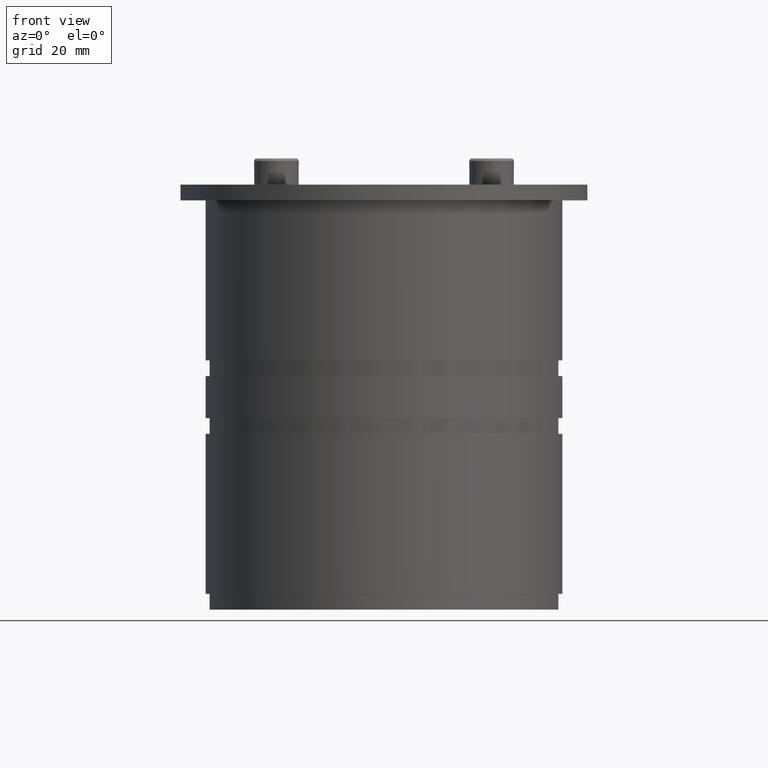
[diagram: clean part render]
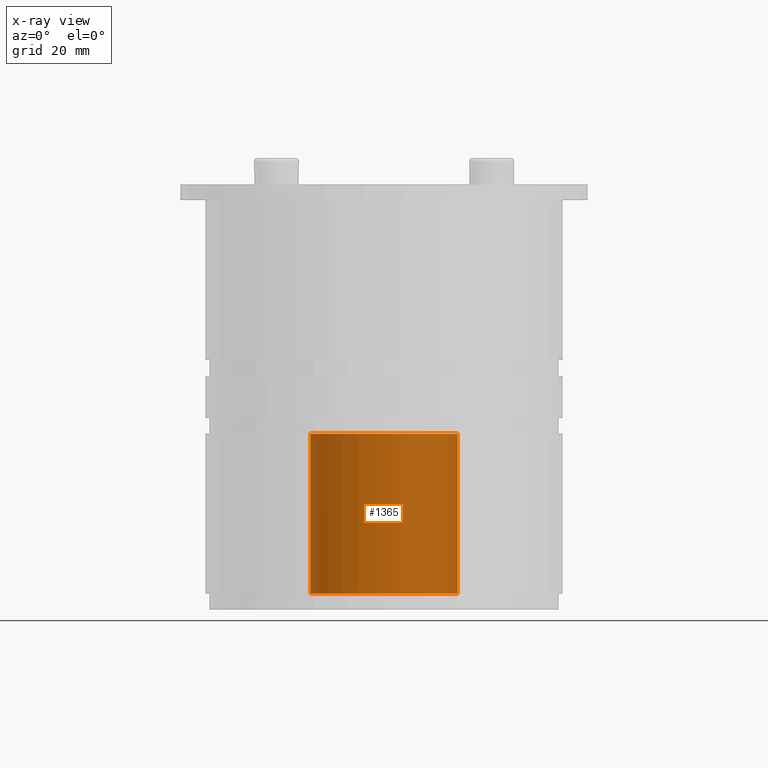
[diagram: x-ray — body ghosted, one internal face saturated and labeled with its STEP entity id]
A machine part, front view, then the same camera in x-ray: the body is ghosted and one INTERNAL B-rep face — a face not visible from any outside direction — is saturated and labeled: STEP entity #1365.
In plain terms, the highlighted cylindrical surface (partial cylindrical patch) has radius 14 mm, axis along (0, 0, 1).
Its self-contained STEP definition (entity closure, byte-faithful):
#1300=CARTESIAN_POINT('',(14.0,-16.999999999999886,-7.250000000000000));
#1301=VERTEX_POINT('',#1300);
#1308=CARTESIAN_POINT('',(14.0,-16.999999999999886,-37.750000000000000));
#1309=VERTEX_POINT('',#1308);
#1310=CARTESIAN_POINT('',(14.0,-16.999999999999886,-37.750000000000000));
#1311=DIRECTION('',(0.0,0.0,1.0));
#1312=VECTOR('',#1311,30.500000000000000);
#1313=LINE('',#1310,#1312);
#1314=EDGE_CURVE('',#1309,#1301,#1313,.T.);
#1333=CARTESIAN_POINT('',(0.0,-17.000000000000114,-37.750000000000000));
#1334=DIRECTION('',(0.0,0.0,1.0));
#1335=DIRECTION('',(1.0,0.0,0.0));
#1336=AXIS2_PLACEMENT_3D('',#1333,#1334,#1335);
#1337=CYLINDRICAL_SURFACE('',#1336,14.0);
#1338=CARTESIAN_POINT('',(-14.0,-17.000000000000114,-7.250000000000000));
#1339=VERTEX_POINT('',#1338);
#1340=CARTESIAN_POINT('',(0.0,-17.000000000000114,-7.250000000000000));
#1341=DIRECTION('',(0.0,0.0,1.0));
#1342=DIRECTION('',(1.0,0.0,0.0));
#1343=AXIS2_PLACEMENT_3D('',#1340,#1341,#1342);
#1344=CIRCLE('',#1343,14.0);
#1345=EDGE_CURVE('',#1301,#1339,#1344,.T.);
#1346=ORIENTED_EDGE('',*,*,#1345,.T.);
#1347=CARTESIAN_POINT('',(-14.0,-17.000000000000114,-37.750000000000000));
#1348=VERTEX_POINT('',#1347);
#1349=CARTESIAN_POINT('',(-14.0,-17.000000000000114,-37.750000000000000));
#1350=DIRECTION('',(0.0,0.0,1.0));
#1351=VECTOR('',#1350,30.500000000000000);
#1352=LINE('',#1349,#1351);
#1353=EDGE_CURVE('',#1348,#1339,#1352,.T.);
#1354=ORIENTED_EDGE('',*,*,#1353,.F.);
#1355=CARTESIAN_POINT('',(0.0,-17.000000000000114,-37.750000000000000));
#1356=DIRECTION('',(0.0,0.0,-1.0));
#1357=DIRECTION('',(1.0,0.0,0.0));
#1358=AXIS2_PLACEMENT_3D('',#1355,#1356,#1357);
#1359=CIRCLE('',#1358,14.0);
#1360=EDGE_CURVE('',#1348,#1309,#1359,.T.);
#1361=ORIENTED_EDGE('',*,*,#1360,.T.);
#1362=ORIENTED_EDGE('',*,*,#1314,.T.);
#1363=EDGE_LOOP('',(#1346,#1354,#1361,#1362));
#1364=FACE_OUTER_BOUND('',#1363,.F.);
#1365=ADVANCED_FACE('',(#1364),#1337,.T.);